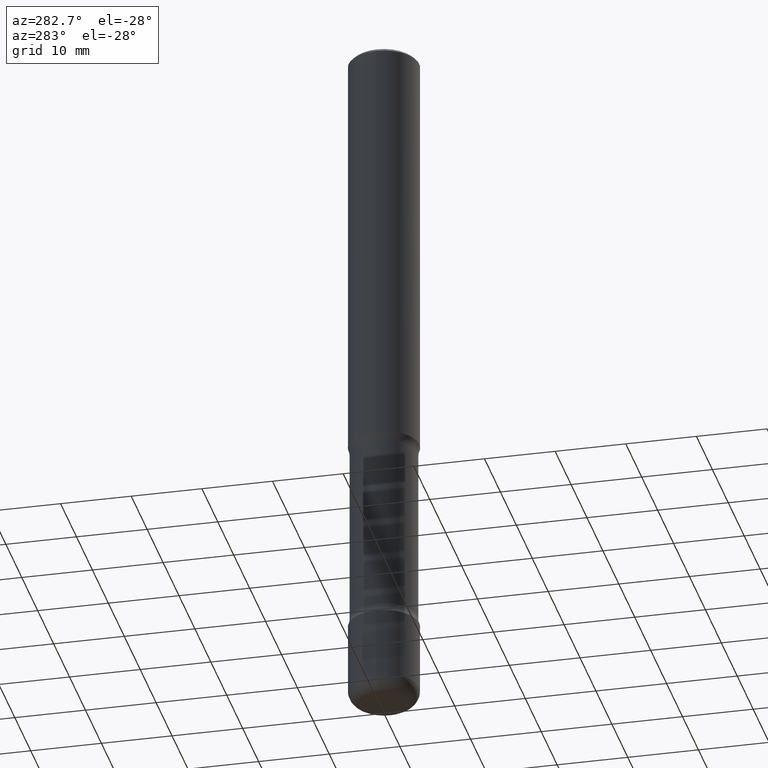
[diagram: clean part render]
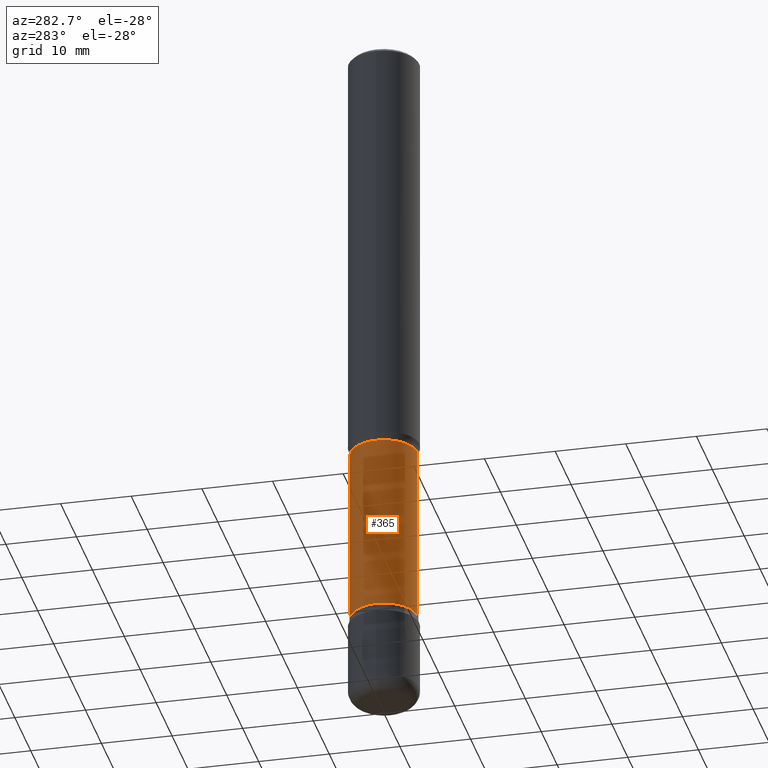
[diagram: same view with one face highlighted and labeled with its STEP entity id]
A machine part, auxiliary view. The second image highlights one B-rep face of the part: STEP entity #365.
In plain terms, the highlighted cylindrical surface (edge-blend (fillet) strip) has radius 4.7498 mm, axis along (0, -0, -1).
Its self-contained STEP definition (entity closure, byte-faithful):
#14 = VERTEX_POINT ( 'NONE', #548 ) ;
#35 = CARTESIAN_POINT ( 'NONE',  ( 1.305814020727429820E-15, 0.1869999999999864826, -3.937000000000000721 ) ) ;
#42 = EDGE_CURVE ( 'NONE', #14, #506, #370, .T. ) ;
#72 = DIRECTION ( 'NONE',  ( 6.982962677686266711E-15, 1.000000000000000000, -2.921762560068729017E-15 ) ) ;
#83 = VECTOR ( 'NONE', #279, 39.37007874015748143 ) ;
#92 = DIRECTION ( 'NONE',  ( 6.982962677686266711E-15, 1.000000000000000000, -2.921762560068730989E-15 ) ) ;
#115 = LINE ( 'NONE', #35, #156 ) ;
#133 = CARTESIAN_POINT ( 'NONE',  ( 5.687496078559489130E-29, -8.715441493235574538E-15, -2.410836174808470123 ) ) ;
#135 = DIRECTION ( 'NONE',  ( 2.642978512612468392E-29, -3.208636197684844610E-15, -1.000000000000000000 ) ) ;
#146 = CIRCLE ( 'NONE', #260, 0.1869999999999999718 ) ;
#156 = VECTOR ( 'NONE', #450, 39.37007874015748143 ) ;
#182 = EDGE_CURVE ( 'NONE', #553, #319, #146, .T. ) ;
#190 = LINE ( 'NONE', #237, #83 ) ;
#220 = CARTESIAN_POINT ( 'NONE',  ( -1.316701078222216832E-15, -0.1870000000000119345, -3.415963825191530301 ) ) ;
#237 = CARTESIAN_POINT ( 'NONE',  ( -1.282913125583179628E-15, -0.1870000000000137386, -3.936999999999999389 ) ) ;
#260 = AXIS2_PLACEMENT_3D ( 'NONE', #422, #302, #92 ) ;
#263 = EDGE_CURVE ( 'NONE', #14, #553, #190, .T. ) ;
#276 = ORIENTED_EDGE ( 'NONE', *, *, #42, .T. ) ;
#279 = DIRECTION ( 'NONE',  ( 2.642978512612468392E-29, -3.208636197684844610E-15, -1.000000000000000000 ) ) ;
#302 = DIRECTION ( 'NONE',  ( 2.642978512612468392E-29, -3.208636197684844610E-15, -1.000000000000000000 ) ) ;
#304 = AXIS2_PLACEMENT_3D ( 'NONE', #550, #459, #72 ) ;
#319 = VERTEX_POINT ( 'NONE', #535 ) ;
#325 = ORIENTED_EDGE ( 'NONE', *, *, #182, .F. ) ;
#353 = ORIENTED_EDGE ( 'NONE', *, *, #263, .F. ) ;
#356 = ORIENTED_EDGE ( 'NONE', *, *, #440, .T. ) ;
#363 = CYLINDRICAL_SURFACE ( 'NONE', #304, 0.1870000000000001106 ) ;
#365 = ADVANCED_FACE ( 'NONE', ( #366 ), #363, .T. ) ;
#366 = FACE_OUTER_BOUND ( 'NONE', #528, .T. ) ;
#370 = CIRCLE ( 'NONE', #425, 0.1870000000000002494 ) ;
#422 = CARTESIAN_POINT ( 'NONE',  ( 8.344026860954575633E-29, -1.194053045554857930E-14, -3.415963825191530745 ) ) ;
#425 = AXIS2_PLACEMENT_3D ( 'NONE', #133, #135, #430 ) ;
#430 = DIRECTION ( 'NONE',  ( 6.982962677686266711E-15, 1.000000000000000000, -2.921762560068726650E-15 ) ) ;
#440 = EDGE_CURVE ( 'NONE', #506, #319, #115, .T. ) ;
#450 = DIRECTION ( 'NONE',  ( 2.642978512612468392E-29, -3.208636197684844610E-15, -1.000000000000000000 ) ) ;
#452 = CARTESIAN_POINT ( 'NONE',  ( 1.305814020727390377E-15, 0.1869999999999915341, -2.410836174808470567 ) ) ;
#459 = DIRECTION ( 'NONE',  ( 2.642978512612468392E-29, -3.208636197684844610E-15, -1.000000000000000000 ) ) ;
#506 = VERTEX_POINT ( 'NONE', #452 ) ;
#528 = EDGE_LOOP ( 'NONE', ( #353, #276, #356, #325 ) ) ;
#535 = CARTESIAN_POINT ( 'NONE',  ( 1.305814020727415029E-15, 0.1869999999999880369, -3.415963825191531189 ) ) ;
#548 = CARTESIAN_POINT ( 'NONE',  ( -1.316701078222247204E-15, -0.1870000000000089646, -2.410836174808469679 ) ) ;
#550 = CARTESIAN_POINT ( 'NONE',  ( 9.721114275267154766E-29, -1.361234598634228266E-14, -3.937000000000000277 ) ) ;
#553 = VERTEX_POINT ( 'NONE', #220 ) ;